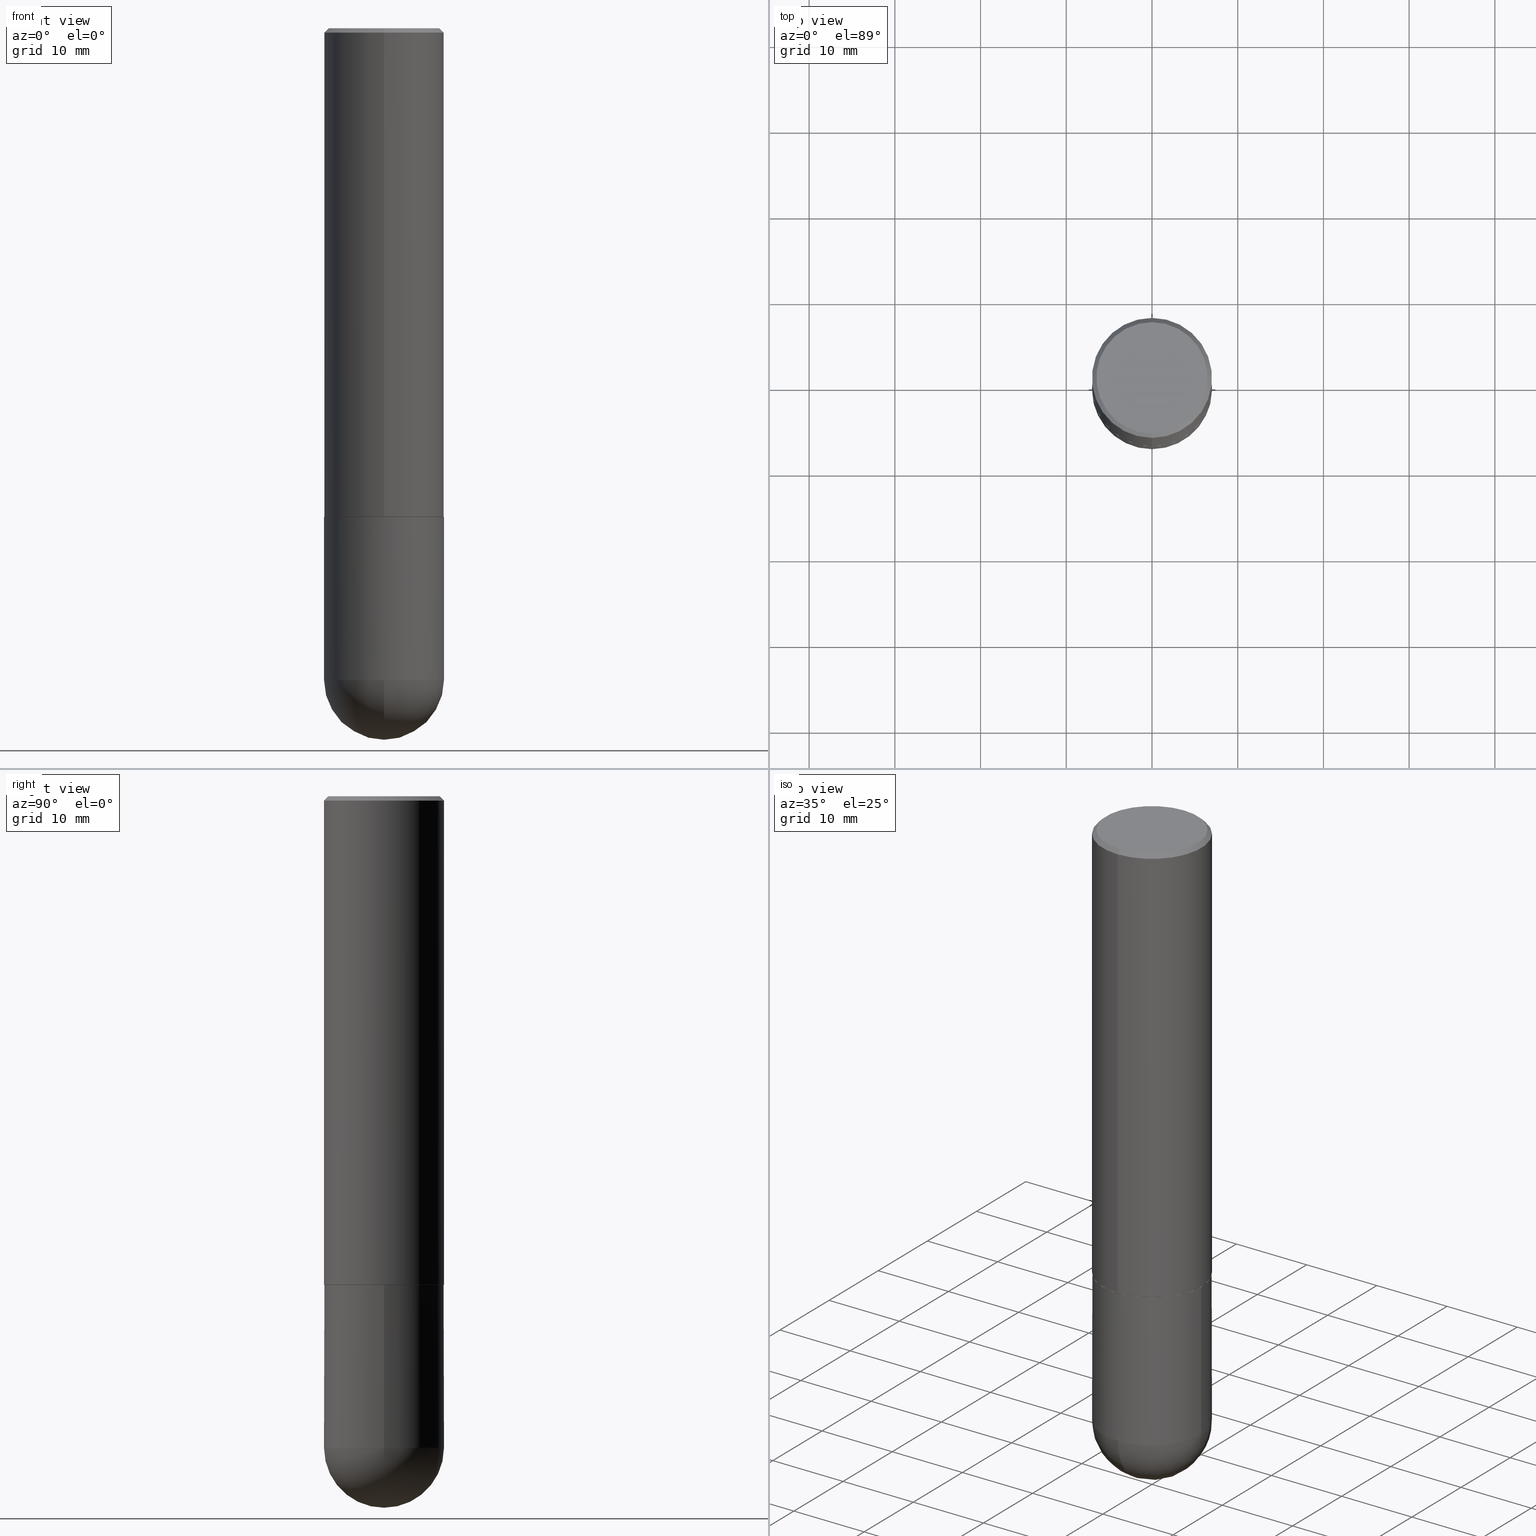
[diagram: canonical four-view strip — front | top / right | iso, engineering-drawing reading convention]
A machine part, canonical four-view strip (front | top / right | iso — engineering-drawing reading convention). The complete STEP part file that produces these views, byte-faithful:
ISO-10303-21;
HEADER;
FILE_DESCRIPTION (( 'STEP AP203' ),
    '1' );
FILE_NAME ('46518.STEP',
    '2024-04-10T11:50:26',
    ( '' ),
    ( '' ),
    'SwSTEP 2.0',
    'SolidWorks 2023',
    '' );
FILE_SCHEMA (( 'CONFIG_CONTROL_DESIGN' ));
ENDSEC;

DATA;
#1 = DIRECTION ( 'NONE',  ( -2.447914526065286047E-29, 3.487978928773040976E-15, 1.000000000000000000 ) ) ;
#2 = CARTESIAN_POINT ( 'NONE',  ( 0.000000000000000000, 0.000000000000000000, 0.000000000000000000 ) ) ;
#3 = EDGE_CURVE ( 'NONE', #207, #375, #410, .T. ) ;
#4 = DIRECTION ( 'NONE',  ( -2.447914526065286047E-29, 3.487978928773040976E-15, 1.000000000000000000 ) ) ;
#5 = AXIS2_PLACEMENT_3D ( 'NONE', #326, #37, #69 ) ;
#6 = CC_DESIGN_PERSON_AND_ORGANIZATION_ASSIGNMENT ( #278, #123, ( #120 ) ) ;
#7 = CIRCLE ( 'NONE', #243, 0.2756000000000000671 ) ;
#8 = DIRECTION ( 'NONE',  ( 4.937700262164538576E-15, 0.7071067811865437980, -0.7071067811865512365 ) ) ;
#9 = ORIENTED_EDGE ( 'NONE', *, *, #201, .T. ) ;
#10 = VERTEX_POINT ( 'NONE', #24 ) ;
#11 = DIRECTION ( 'NONE',  ( 1.000000000000000000, -6.982962677686264344E-15, 0.000000000000000000 ) ) ;
#12 = LOCAL_TIME ( 7, 50, 26.00000000000000000, #211 ) ;
#13 = APPLICATION_PROTOCOL_DEFINITION ( 'international standard', 'config_control_design', 1994, #188 ) ;
#14 = DIRECTION ( 'NONE',  ( -2.447914526065285207E-29, 3.487978928773041370E-15, 1.000000000000000000 ) ) ;
#15 = VERTEX_POINT ( 'NONE', #307 ) ;
#16 = EDGE_CURVE ( 'NONE', #138, #375, #104, .T. ) ;
#17 = DIRECTION ( 'NONE',  ( -2.445468806185136877E-29, 3.491481338843145188E-15, 1.000000000000000000 ) ) ;
#18 = CARTESIAN_POINT ( 'NONE',  ( 1.954703066076091700E-15, 0.2745999999999921837, -2.244100000000000872 ) ) ;
#19 = CIRCLE ( 'NONE', #166, 0.2756000000000000116 ) ;
#20 = PERSON_AND_ORGANIZATION ( #390, #140 ) ;
#21 = ORIENTED_EDGE ( 'NONE', *, *, #16, .T. ) ;
#22 = DIRECTION ( 'NONE',  ( -2.445468806185136877E-29, 3.491481338843145188E-15, 1.000000000000000000 ) ) ;
#23 = ORIENTED_EDGE ( 'NONE', *, *, #87, .T. ) ;
#24 = CARTESIAN_POINT ( 'NONE',  ( -1.924504513970282495E-15, -0.2756000000000081718, -2.243099999999999206 ) ) ;
#25 = APPROVAL ( #117, 'UNSPECIFIED' ) ;
#26 = ORIENTED_EDGE ( 'NONE', *, *, #324, .F. ) ;
#27 = AXIS2_PLACEMENT_3D ( 'NONE', #253, #380, #274 ) ;
#28 = VECTOR ( 'NONE', #181, 39.37007874015748143 ) ;
#29 = DIRECTION ( 'NONE',  ( -2.447914526065286047E-29, 3.487978928773040976E-15, 1.000000000000000000 ) ) ;
#30 = COORDINATED_UNIVERSAL_TIME_OFFSET ( 5, 0, .BEHIND. ) ;
#31 = DIRECTION ( 'NONE',  ( 1.000000000000000000, -6.982962677686267499E-15, 4.876176775795935793E-29 ) ) ;
#32 = AXIS2_PLACEMENT_3D ( 'NONE', #121, #183, #283 ) ;
#33 = CIRCLE ( 'NONE', #176, 0.2756000000000000671 ) ;
#34 = CARTESIAN_POINT ( 'NONE',  ( 0.000000000000000000, 0.000000000000000000, 0.000000000000000000 ) ) ;
#35 = DIRECTION ( 'NONE',  ( -6.982962677686265922E-15, -1.000000000000000000, 3.487978928773041370E-15 ) ) ;
#36 = EDGE_CURVE ( 'NONE', #15, #300, #316, .T. ) ;
#37 = DIRECTION ( 'NONE',  ( -2.447914526065286047E-29, 3.487978928773040976E-15, 1.000000000000000000 ) ) ;
#38 = UNCERTAINTY_MEASURE_WITH_UNIT (LENGTH_MEASURE( 1.000000000000000082E-05 ), #378, 'distance_accuracy_value', 'NONE');
#39 = LOCAL_TIME ( 7, 50, 26.00000000000000000, #286 ) ;
#40 = DIRECTION ( 'NONE',  ( -6.982962677686265922E-15, -1.000000000000000000, 3.487978928773041370E-15 ) ) ;
#41 = EDGE_LOOP ( 'NONE', ( #111, #91, #89, #125 ) ) ;
#42 = DESIGN_CONTEXT ( 'detailed design', #188, 'design' ) ;
#43 = APPROVAL_ROLE ( '' ) ;
#44 = ORIENTED_EDGE ( 'NONE', *, *, #53, .F. ) ;
#45 = APPROVAL_DATE_TIME ( #299, #25 ) ;
#46 = ORIENTED_EDGE ( 'NONE', *, *, #327, .T. ) ;
#47 = CARTESIAN_POINT ( 'NONE',  ( -0.2756000000000000671, 1.958255779754836589E-15, -1.355658510874252287E-29 ) ) ;
#48 = PRODUCT_DEFINITION_SHAPE ( 'NONE', 'NONE',  #103 ) ;
#49 = VECTOR ( 'NONE', #17, 39.37007874015748143 ) ;
#50 = VECTOR ( 'NONE', #163, 39.37007874015748143 ) ;
#51 = LOCAL_TIME ( 7, 50, 26.00000000000000000, #304 ) ;
#52 = EDGE_LOOP ( 'NONE', ( #393, #21 ) ) ;
#53 = EDGE_CURVE ( 'NONE', #300, #207, #202, .T. ) ;
#54 = DIRECTION ( 'NONE',  ( 6.982962677686265922E-15, 1.000000000000000000, 0.000000000000000000 ) ) ;
#55 = VERTEX_POINT ( 'NONE', #400 ) ;
#56 = CARTESIAN_POINT ( 'NONE',  ( 5.490917073417043323E-29, -7.823885535130809142E-15, -2.243100000000000094 ) ) ;
#57 = PERSON_AND_ORGANIZATION ( #390, #140 ) ;
#58 = ORIENTED_EDGE ( 'NONE', *, *, #160, .F. ) ;
#59 = DIRECTION ( 'NONE',  ( 1.000000000000000000, -6.982962677686265922E-15, 4.883557194083112340E-29 ) ) ;
#60 = CLOSED_SHELL ( 'NONE', ( #315, #295, #332, #355, #216 ) ) ;
#61 = CARTESIAN_POINT ( 'NONE',  ( -1.890753248185833713E-15, -0.2756000000000001227, -0.01999999999999913305 ) ) ;
#62 = DIRECTION ( 'NONE',  ( -2.447914526065286047E-29, 3.487978928773040976E-15, 1.000000000000000000 ) ) ;
#63 = ORIENTED_EDGE ( 'NONE', *, *, #335, .F. ) ;
#64 = ORIENTED_EDGE ( 'NONE', *, *, #87, .F. ) ;
#65 =( NAMED_UNIT ( * ) PLANE_ANGLE_UNIT ( ) SI_UNIT ( $, .RADIAN. ) );
#66 = LINE ( 'NONE', #213, #155 ) ;
#67 = CONICAL_SURFACE ( 'NONE', #71, 0.2756000000000000671, 0.7853981633974465026 ) ;
#68 = CIRCLE ( 'NONE', #259, 0.2756000000000003447 ) ;
#69 = DIRECTION ( 'NONE',  ( -6.982962677686266711E-15, -1.000000000000000000, 3.979385278462145862E-15 ) ) ;
#70 = EDGE_CURVE ( 'NONE', #314, #300, #185, .T. ) ;
#71 = AXIS2_PLACEMENT_3D ( 'NONE', #134, #296, #135 ) ;
#72 = SECURITY_CLASSIFICATION ( '', '', #235 ) ;
#73 = APPROVAL ( #338, 'UNSPECIFIED' ) ;
#74 = CYLINDRICAL_SURFACE ( 'NONE', #376, 0.2756000000000001782 ) ;
#75 = FACE_OUTER_BOUND ( 'NONE', #107, .T. ) ;
#76 = CLOSED_SHELL ( 'NONE', ( #98, #173, #224, #240, #133, #320, #364, #405 ) ) ;
#77 = VECTOR ( 'NONE', #22, 39.37007874015748143 ) ;
#78 = EDGE_LOOP ( 'NONE', ( #64, #177, #151, #9 ) ) ;
#79 = PRODUCT ( '46518', '46518', '', ( #271 ) ) ;
#80 = ORIENTED_EDGE ( 'NONE', *, *, #182, .F. ) ;
#81 = LINE ( 'NONE', #215, #28 ) ;
#82 = ORIENTED_EDGE ( 'NONE', *, *, #3, .F. ) ;
#83 = DIRECTION ( 'NONE',  ( -6.982962677686266711E-15, -1.000000000000000000, 3.979385278462145862E-15 ) ) ;
#84 = AXIS2_PLACEMENT_3D ( 'NONE', #279, #214, #128 ) ;
#85 = AXIS2_PLACEMENT_3D ( 'NONE', #178, #210, #119 ) ;
#86 = DIRECTION ( 'NONE',  ( -2.445468806185136597E-29, 3.491481338843145583E-15, 1.000000000000000000 ) ) ;
#87 = EDGE_CURVE ( 'NONE', #97, #55, #344, .T. ) ;
#88 = PERSON_AND_ORGANIZATION ( #390, #140 ) ;
#89 = ORIENTED_EDGE ( 'NONE', *, *, #371, .T. ) ;
#90 = DIRECTION ( 'NONE',  ( -2.447914526065286047E-29, 3.487978928773040976E-15, 1.000000000000000000 ) ) ;
#91 = ORIENTED_EDGE ( 'NONE', *, *, #250, .T. ) ;
#92 = SPHERICAL_SURFACE ( 'NONE', #294, 0.2756000000000003447 ) ;
#93 = EDGE_CURVE ( 'NONE', #207, #203, #136, .T. ) ;
#94 = DIRECTION ( 'NONE',  ( -2.445468806185136597E-29, 3.491481338843145583E-15, 1.000000000000000000 ) ) ;
#95 = AXIS2_PLACEMENT_3D ( 'NONE', #366, #86, #209 ) ;
#96 = EDGE_LOOP ( 'NONE', ( #245, #124, #362, #44 ) ) ;
#97 = VERTEX_POINT ( 'NONE', #318 ) ;
#98 = ADVANCED_FACE ( 'NONE', ( #195 ), #322, .T. ) ;
#99 = ORIENTED_EDGE ( 'NONE', *, *, #409, .T. ) ;
#100 = AXIS2_PLACEMENT_3D ( 'NONE', #321, #4, #101 ) ;
#101 = DIRECTION ( 'NONE',  ( -6.982962677686265922E-15, -1.000000000000000000, 3.484816075009405599E-15 ) ) ;
#102 = DIRECTION ( 'NONE',  ( 0.000000000000000000, 0.000000000000000000, 1.000000000000000000 ) ) ;
#103 = PRODUCT_DEFINITION ( 'UNKNOWN', '', #120, #42 ) ;
#104 = CIRCLE ( 'NONE', #391, 0.2756000000000000116 ) ;
#105 = CC_DESIGN_APPROVAL ( #348, ( #72 ) ) ;
#106 = APPROVAL_PERSON_ORGANIZATION ( #20, #25, #43 ) ;
#107 = EDGE_LOOP ( 'NONE', ( #347, #109, #147, #305 ) ) ;
#108 = DIRECTION ( 'NONE',  ( -6.982962677686265922E-15, -1.000000000000000000, 3.964946289788475374E-15 ) ) ;
#109 = ORIENTED_EDGE ( 'NONE', *, *, #144, .T. ) ;
#110 = AXIS2_PLACEMENT_3D ( 'NONE', #252, #221, #311 ) ;
#111 = ORIENTED_EDGE ( 'NONE', *, *, #144, .F. ) ;
#112 = CARTESIAN_POINT ( 'NONE',  ( 3.261089778898830066E-45, -4.646654248961670256E-31, -1.332191032070315374E-16 ) ) ;
#113 = DATE_AND_TIME ( #170, #412 ) ;
#114 = CARTESIAN_POINT ( 'NONE',  ( 5.493364987943107990E-29, -7.827373514059580162E-15, -2.244099999999999984 ) ) ;
#115 = CC_DESIGN_PERSON_AND_ORGANIZATION_ASSIGNMENT ( #57, #150, ( #120 ) ) ;
#116 = CARTESIAN_POINT ( 'NONE',  ( -1.958255779754765592E-15, -0.2756000000000108918, -2.992099999999998872 ) ) ;
#117 = APPROVAL_STATUS ( 'not_yet_approved' ) ;
#118 = ORIENTED_EDGE ( 'NONE', *, *, #93, .T. ) ;
#119 = DIRECTION ( 'NONE',  ( 6.982962677686265922E-15, 1.000000000000000000, -3.487978928773041370E-15 ) ) ;
#120 = PRODUCT_DEFINITION_FORMATION_WITH_SPECIFIED_SOURCE ( 'ANY', '', #79, .NOT_KNOWN. ) ;
#121 = CARTESIAN_POINT ( 'NONE',  ( 7.317087214986547114E-29, -1.044686131395257581E-14, -2.992100000000000204 ) ) ;
#122 = DIRECTION ( 'NONE',  ( -6.982962677686266711E-15, -1.000000000000000000, 3.979385278462145862E-15 ) ) ;
#123 = PERSON_AND_ORGANIZATION_ROLE ( 'design_supplier' ) ;
#124 = ORIENTED_EDGE ( 'NONE', *, *, #399, .T. ) ;
#125 = ORIENTED_EDGE ( 'NONE', *, *, #201, .F. ) ;
#126 = MANIFOLD_SOLID_BREP ( 'Body-Move/Copy2[2]', #76 ) ;
#127 = APPROVAL_PERSON_ORGANIZATION ( #349, #348, #282 ) ;
#128 = DIRECTION ( 'NONE',  ( -7.105427357601001859E-15, -1.000000000000000000, 0.000000000000000000 ) ) ;
#129 = ORIENTED_EDGE ( 'NONE', *, *, #130, .F. ) ;
#130 = EDGE_CURVE ( 'NONE', #174, #368, #66, .T. ) ;
#131 = APPROVAL_DATE_TIME ( #217, #348 ) ;
#132 = AXIS2_PLACEMENT_3D ( 'NONE', #256, #102, #384 ) ;
#133 = ADVANCED_FACE ( 'NONE', ( #356 ), #74, .T. ) ;
#134 = CARTESIAN_POINT ( 'NONE',  ( 4.895829052130595321E-31, -6.975957857546113555E-17, -0.02000000000000009409 ) ) ;
#135 = DIRECTION ( 'NONE',  ( 6.982962677686265922E-15, 1.000000000000000000, -3.484816075009405599E-15 ) ) ;
#136 = CIRCLE ( 'NONE', #110, 0.2756000000000000671 ) ;
#137 = CIRCLE ( 'NONE', #317, 0.2756000000000003447 ) ;
#138 = VERTEX_POINT ( 'NONE', #229 ) ;
#139 = DIRECTION ( 'NONE',  ( -6.982962677686265922E-15, -1.000000000000000000, 3.487978928773040976E-15 ) ) ;
#140 = ORGANIZATION ( 'UNSPECIFIED', 'UNSPECIFIED', '' ) ;
#141 = CARTESIAN_POINT ( 'NONE',  ( 7.671722831522178326E-29, -1.186642030618554829E-14, -3.267700000000000049 ) ) ;
#142 = PERSON_AND_ORGANIZATION_ROLE ( 'creator' ) ;
#143 = LINE ( 'NONE', #148, #408 ) ;
#144 = EDGE_CURVE ( 'NONE', #180, #368, #358, .T. ) ;
#145 = ORIENTED_EDGE ( 'NONE', *, *, #399, .F. ) ;
#146 = DIRECTION ( 'NONE',  ( 2.438088387897960049E-29, -3.491481338843145188E-15, -1.000000000000000000 ) ) ;
#147 = ORIENTED_EDGE ( 'NONE', *, *, #409, .F. ) ;
#148 = CARTESIAN_POINT ( 'NONE',  ( -1.924504513970336137E-15, -0.2756000000000001782, 9.612869927698508130E-16 ) ) ;
#149 = VECTOR ( 'NONE', #382, 39.37007874015748143 ) ;
#150 = PERSON_AND_ORGANIZATION_ROLE ( 'creator' ) ;
#151 = ORIENTED_EDGE ( 'NONE', *, *, #130, .T. ) ;
#152 = ORIENTED_EDGE ( 'NONE', *, *, #232, .F. ) ;
#153 = CALENDAR_DATE ( 2024, 10, 4 ) ;
#154 = EDGE_LOOP ( 'NONE', ( #152, #262, #402, #218 ) ) ;
#155 = VECTOR ( 'NONE', #8, 39.37007874015748143 ) ;
#156 = ORIENTED_EDGE ( 'NONE', *, *, #70, .T. ) ;
#157 = CC_DESIGN_PERSON_AND_ORGANIZATION_ASSIGNMENT ( #340, #142, ( #103 ) ) ;
#158 = CARTESIAN_POINT ( 'NONE',  ( 5.493364987943107990E-29, -7.827373514059580162E-15, -2.244099999999999984 ) ) ;
#159 =( NAMED_UNIT ( * ) SI_UNIT ( $, .STERADIAN. ) SOLID_ANGLE_UNIT ( ) );
#160 = EDGE_CURVE ( 'NONE', #97, #174, #385, .T. ) ;
#161 = FACE_OUTER_BOUND ( 'NONE', #204, .T. ) ;
#162 = CC_DESIGN_SECURITY_CLASSIFICATION ( #72, ( #120 ) ) ;
#163 = DIRECTION ( 'NONE',  ( -2.447914526065285767E-29, 3.487978928773041370E-15, 1.000000000000000000 ) ) ;
#164 = DIRECTION ( 'NONE',  ( -6.982962677686265922E-15, -1.000000000000000000, 3.487978928773040976E-15 ) ) ;
#165 = FACE_OUTER_BOUND ( 'NONE', #249, .T. ) ;
#166 = AXIS2_PLACEMENT_3D ( 'NONE', #260, #387, #325 ) ;
#167 = AXIS2_PLACEMENT_3D ( 'NONE', #114, #62, #122 ) ;
#168 = DIRECTION ( 'NONE',  ( -2.445468806185136597E-29, 3.491481338843145583E-15, 1.000000000000000000 ) ) ;
#169 = ORIENTED_EDGE ( 'NONE', *, *, #290, .F. ) ;
#170 = CALENDAR_DATE ( 2024, 10, 4 ) ;
#171 = ORIENTED_EDGE ( 'NONE', *, *, #3, .T. ) ;
#172 = CARTESIAN_POINT ( 'NONE',  ( 6.985967437072660867E-29, -1.092104368209262610E-14, -2.992100000000000204 ) ) ;
#173 = ADVANCED_FACE ( 'NONE', ( #75 ), #291, .T. ) ;
#174 = VERTEX_POINT ( 'NONE', #197 ) ;
#175 = LINE ( 'NONE', #47, #77 ) ;
#176 = AXIS2_PLACEMENT_3D ( 'NONE', #189, #270, #11 ) ;
#177 = ORIENTED_EDGE ( 'NONE', *, *, #352, .F. ) ;
#178 = CARTESIAN_POINT ( 'NONE',  ( 1.784845260416610724E-15, 0.2556000000000001604, -9.581369657979055694E-16 ) ) ;
#179 = PERSON_AND_ORGANIZATION_ROLE ( 'design_owner' ) ;
#180 = VERTEX_POINT ( 'NONE', #293 ) ;
#181 = DIRECTION ( 'NONE',  ( -4.937700262165812586E-15, -0.7071067811867262076, 0.7071067811863689379 ) ) ;
#182 = EDGE_CURVE ( 'NONE', #375, #138, #19, .T. ) ;
#183 = DIRECTION ( 'NONE',  ( -2.445468806185136597E-29, 3.491481338843145583E-15, 1.000000000000000000 ) ) ;
#184 =( LENGTH_UNIT ( ) NAMED_UNIT ( * ) SI_UNIT ( $, .METRE. ) );
#185 = CIRCLE ( 'NONE', #84, 0.2756000000000003447 ) ;
#186 = AXIS2_PLACEMENT_3D ( 'NONE', #277, #309, #83 ) ;
#187 = DIRECTION ( 'NONE',  ( -4.851104656540954809E-15, -0.7071067811865486830, -0.7071067811865463515 ) ) ;
#188 = APPLICATION_CONTEXT ( 'configuration controlled 3d designs of mechanical parts and assemblies' ) ;
#189 = CARTESIAN_POINT ( 'NONE',  ( 7.317087214986547114E-29, -1.044686131395257581E-14, -2.992100000000000204 ) ) ;
#190 = ORIENTED_EDGE ( 'NONE', *, *, #36, .T. ) ;
#191 = ORIENTED_EDGE ( 'NONE', *, *, #386, .F. ) ;
#192 = EDGE_CURVE ( 'NONE', #341, #360, #263, .T. ) ;
#193 = AXIS2_PLACEMENT_3D ( 'NONE', #328, #1, #40 ) ;
#194 = AXIS2_PLACEMENT_3D ( 'NONE', #112, #90, #139 ) ;
#195 = FACE_OUTER_BOUND ( 'NONE', #374, .T. ) ;
#196 = LENGTH_MEASURE_WITH_UNIT ( LENGTH_MEASURE( 0.02539999999999999897 ), #184 );
#197 = CARTESIAN_POINT ( 'NONE',  ( 1.854674887193473233E-15, 0.2556000000000001604, -1.024746517401421350E-15 ) ) ;
#198 = CIRCLE ( 'NONE', #353, 0.2756000000000003447 ) ;
#199 = DIRECTION ( 'NONE',  ( -2.447914526065286047E-29, 3.487978928773040976E-15, 1.000000000000000000 ) ) ;
#200 = CARTESIAN_POINT ( 'NONE',  ( 1.958255779754837378E-15, 0.2756000000000001782, -9.612869927698508130E-16 ) ) ;
#201 = EDGE_CURVE ( 'NONE', #368, #55, #411, .T. ) ;
#202 = CIRCLE ( 'NONE', #32, 0.2756000000000000671 ) ;
#203 = VERTEX_POINT ( 'NONE', #258 ) ;
#204 = EDGE_LOOP ( 'NONE', ( #58, #23, #99, #129 ) ) ;
#205 = DIRECTION ( 'NONE',  ( -6.982962677686265922E-15, -1.000000000000000000, 3.964946289788475374E-15 ) ) ;
#206 = CALENDAR_DATE ( 2024, 10, 4 ) ;
#207 = VERTEX_POINT ( 'NONE', #257 ) ;
#208 = DIRECTION ( 'NONE',  ( -6.982962677686265922E-15, -1.000000000000000000, 3.487978928773041370E-15 ) ) ;
#209 = DIRECTION ( 'NONE',  ( 1.000000000000000000, -6.982962677686267499E-15, 4.876176775795935793E-29 ) ) ;
#210 = DIRECTION ( 'NONE',  ( 2.447914526065285207E-29, -3.487978928773041370E-15, -1.000000000000000000 ) ) ;
#211 = COORDINATED_UNIVERSAL_TIME_OFFSET ( 5, 0, .BEHIND. ) ;
#212 = CARTESIAN_POINT ( 'NONE',  ( 5.487876547960065873E-29, -7.835233272497903917E-15, -2.244100000000000428 ) ) ;
#213 = CARTESIAN_POINT ( 'NONE',  ( 1.924504513970335743E-15, 0.2756000000000000116, -0.02000000000000105513 ) ) ;
#214 = DIRECTION ( 'NONE',  ( -1.000000000000000000, 7.105427357601001070E-15, -4.926315508542082329E-29 ) ) ;
#215 = CARTESIAN_POINT ( 'NONE',  ( -1.917521551292593719E-15, -0.2746000000000078378, -2.244099999999999095 ) ) ;
#216 = ADVANCED_FACE ( 'NONE', ( #165 ), #225, .T. ) ;
#217 = DATE_AND_TIME ( #153, #284 ) ;
#218 = ORIENTED_EDGE ( 'NONE', *, *, #250, .F. ) ;
#219 = CC_DESIGN_DATE_AND_TIME_ASSIGNMENT ( #268, #333, ( #103 ) ) ;
#220 = DATE_TIME_ROLE ( 'classification_date' ) ;
#221 = DIRECTION ( 'NONE',  ( -2.445468806185136597E-29, 3.491481338843145583E-15, 1.000000000000000000 ) ) ;
#222 = ORIENTED_EDGE ( 'NONE', *, *, #335, .T. ) ;
#223 = APPROVAL_PERSON_ORGANIZATION ( #88, #73, #273 ) ;
#224 = ADVANCED_FACE ( 'NONE', ( #161 ), #67, .T. ) ;
#225 = CYLINDRICAL_SURFACE ( 'NONE', #308, 0.2756000000000000671 ) ;
#226 = ADVANCED_BREP_SHAPE_REPRESENTATION ( '46518', ( #388, #126, #132 ), #289 ) ;
#227 = CC_DESIGN_APPROVAL ( #25, ( #103 ) ) ;
#228 = CC_DESIGN_DATE_AND_TIME_ASSIGNMENT ( #319, #220, ( #72 ) ) ;
#229 = CARTESIAN_POINT ( 'NONE',  ( -0.2756000000000000116, -7.182791513470402485E-15, -2.244100000000000428 ) ) ;
#230 = DIRECTION ( 'NONE',  ( -2.447914526065286047E-29, 3.487978928773040976E-15, 1.000000000000000000 ) ) ;
#231 = EDGE_LOOP ( 'NONE', ( #145, #156, #404, #264 ) ) ;
#232 = EDGE_CURVE ( 'NONE', #341, #180, #255, .T. ) ;
#233 = FACE_OUTER_BOUND ( 'NONE', #231, .T. ) ;
#234 = FACE_OUTER_BOUND ( 'NONE', #78, .T. ) ;
#235 = SECURITY_CLASSIFICATION_LEVEL ( 'unclassified' ) ;
#236 = DIRECTION ( 'NONE',  ( -2.447914526065286047E-29, 3.487978928773040976E-15, 1.000000000000000000 ) ) ;
#237 = PERSON_AND_ORGANIZATION ( #390, #140 ) ;
#238 = PLANE ( 'NONE',  #85 ) ;
#239 = DIRECTION ( 'NONE',  ( -1.000000000000000000, 6.982962677686265922E-15, -4.883557194083112340E-29 ) ) ;
#240 = ADVANCED_FACE ( 'NONE', ( #234 ), #292, .T. ) ;
#241 = APPLICATION_PROTOCOL_DEFINITION ( 'international standard', 'config_control_design', 1994, #343 ) ;
#242 = ORIENTED_EDGE ( 'NONE', *, *, #16, .F. ) ;
#243 = AXIS2_PLACEMENT_3D ( 'NONE', #403, #236, #363 ) ;
#244 = COORDINATED_UNIVERSAL_TIME_OFFSET ( 5, 0, .BEHIND. ) ;
#245 = ORIENTED_EDGE ( 'NONE', *, *, #70, .F. ) ;
#246 = CARTESIAN_POINT ( 'NONE',  ( 6.985967437072660867E-29, -1.092104368209262610E-14, -2.992100000000000204 ) ) ;
#247 = CALENDAR_DATE ( 2024, 10, 4 ) ;
#248 = ORIENTED_EDGE ( 'NONE', *, *, #53, .T. ) ;
#249 = EDGE_LOOP ( 'NONE', ( #63, #190, #248, #171, #242 ) ) ;
#250 = EDGE_CURVE ( 'NONE', #180, #10, #198, .T. ) ;
#251 = CC_DESIGN_APPROVAL ( #73, ( #120 ) ) ;
#252 = CARTESIAN_POINT ( 'NONE',  ( 7.317087214986547114E-29, -1.044686131395257581E-14, -2.992100000000000204 ) ) ;
#253 = CARTESIAN_POINT ( 'NONE',  ( 7.317087214986547114E-29, -1.044686131395257581E-14, -2.992100000000000204 ) ) ;
#254 = AXIS2_PLACEMENT_3D ( 'NONE', #381, #230, #164 ) ;
#255 = LINE ( 'NONE', #383, #149 ) ;
#256 = CARTESIAN_POINT ( 'NONE',  ( 0.000000000000000000, 0.000000000000000000, 0.000000000000000000 ) ) ;
#257 = CARTESIAN_POINT ( 'NONE',  ( 0.2756000000000000671, -1.106555180719557718E-14, -2.992100000000000204 ) ) ;
#258 = CARTESIAN_POINT ( 'NONE',  ( 1.924504513970407924E-15, 0.2755999999999895200, -2.992100000000001092 ) ) ;
#259 = AXIS2_PLACEMENT_3D ( 'NONE', #306, #59, #54 ) ;
#260 = CARTESIAN_POINT ( 'NONE',  ( 5.487876547960065873E-29, -7.835233272497903917E-15, -2.244100000000000428 ) ) ;
#261 = DIRECTION ( 'NONE',  ( -2.447914526065286047E-29, 3.487978928773040976E-15, 1.000000000000000000 ) ) ;
#262 = ORIENTED_EDGE ( 'NONE', *, *, #192, .T. ) ;
#263 = CIRCLE ( 'NONE', #5, 0.2746000000000000107 ) ;
#264 = ORIENTED_EDGE ( 'NONE', *, *, #327, .F. ) ;
#265 = CIRCLE ( 'NONE', #167, 0.2746000000000000107 ) ;
#266 = FACE_OUTER_BOUND ( 'NONE', #96, .T. ) ;
#267 = FACE_OUTER_BOUND ( 'NONE', #370, .T. ) ;
#268 = DATE_AND_TIME ( #247, #51 ) ;
#269 = EDGE_LOOP ( 'NONE', ( #191, #297 ) ) ;
#270 = DIRECTION ( 'NONE',  ( -2.445468806185136597E-29, 3.491481338843145583E-15, 1.000000000000000000 ) ) ;
#271 = MECHANICAL_CONTEXT ( 'NONE', #343, 'mechanical' ) ;
#272 = CARTESIAN_POINT ( 'NONE',  ( 1.924504513970335743E-15, 0.2756000000000000116, -0.02000000000000105513 ) ) ;
#273 = APPROVAL_ROLE ( '' ) ;
#274 = DIRECTION ( 'NONE',  ( 1.000000000000000000, -6.982962677686264344E-15, 0.000000000000000000 ) ) ;
#275 = AXIS2_PLACEMENT_3D ( 'NONE', #158, #29, #351 ) ;
#276 = PLANE ( 'NONE',  #323 ) ;
#277 = CARTESIAN_POINT ( 'NONE',  ( 5.493364987943107990E-29, -7.827373514059580162E-15, -2.244099999999999984 ) ) ;
#278 = PERSON_AND_ORGANIZATION ( #390, #140 ) ;
#279 = CARTESIAN_POINT ( 'NONE',  ( 6.985967437072660867E-29, -1.092104368209262610E-14, -2.992100000000000204 ) ) ;
#280 = CARTESIAN_POINT ( 'NONE',  ( 1.924504513970389780E-15, 0.2755999999999921846, -2.244100000000001316 ) ) ;
#281 = ORIENTED_EDGE ( 'NONE', *, *, #386, .T. ) ;
#282 = APPROVAL_ROLE ( '' ) ;
#283 = DIRECTION ( 'NONE',  ( 1.000000000000000000, -6.982962677686264344E-15, 0.000000000000000000 ) ) ;
#284 = LOCAL_TIME ( 7, 50, 26.00000000000000000, #30 ) ;
#285 = AXIS2_PLACEMENT_3D ( 'NONE', #280, #146, #396 ) ;
#286 = COORDINATED_UNIVERSAL_TIME_OFFSET ( 5, 0, .BEHIND. ) ;
#287 = DIRECTION ( 'NONE',  ( 1.000000000000000000, -6.982962677686269866E-15, 0.000000000000000000 ) ) ;
#288 = VECTOR ( 'NONE', #187, 39.37007874015748143 ) ;
#289 =( GEOMETRIC_REPRESENTATION_CONTEXT ( 3 ) GLOBAL_UNCERTAINTY_ASSIGNED_CONTEXT ( ( #38 ) ) GLOBAL_UNIT_ASSIGNED_CONTEXT ( ( #378, #65, #159 ) ) REPRESENTATION_CONTEXT ( 'NONE', 'WORKASPACE' ) );
#290 = EDGE_CURVE ( 'NONE', #10, #180, #137, .T. ) ;
#291 = CYLINDRICAL_SURFACE ( 'NONE', #193, 0.2756000000000001782 ) ;
#292 = CONICAL_SURFACE ( 'NONE', #407, 0.2756000000000000671, 0.7853981633974465026 ) ;
#293 = CARTESIAN_POINT ( 'NONE',  ( 1.958255779754865383E-15, 0.2755999999999925176, -2.243100000000001426 ) ) ;
#294 = AXIS2_PLACEMENT_3D ( 'NONE', #246, #334, #345 ) ;
#295 = ADVANCED_FACE ( 'NONE', ( #233 ), #359, .T. ) ;
#296 = DIRECTION ( 'NONE',  ( 2.447914526065286047E-29, -3.487978928773040976E-15, -1.000000000000000000 ) ) ;
#297 = ORIENTED_EDGE ( 'NONE', *, *, #192, .F. ) ;
#298 = DIRECTION ( 'NONE',  ( 6.982962677686265922E-15, 1.000000000000000000, -3.964946289788475374E-15 ) ) ;
#299 = DATE_AND_TIME ( #206, #12 ) ;
#300 = VERTEX_POINT ( 'NONE', #116 ) ;
#301 = CIRCLE ( 'NONE', #194, 0.2556000000000001604 ) ;
#302 = FACE_OUTER_BOUND ( 'NONE', #52, .T. ) ;
#303 = CC_DESIGN_PERSON_AND_ORGANIZATION_ASSIGNMENT ( #392, #361, ( #72 ) ) ;
#304 = COORDINATED_UNIVERSAL_TIME_OFFSET ( 5, 0, .BEHIND. ) ;
#305 = ORIENTED_EDGE ( 'NONE', *, *, #371, .F. ) ;
#306 = CARTESIAN_POINT ( 'NONE',  ( 6.985967437072660867E-29, -1.092104368209262610E-14, -2.992100000000000204 ) ) ;
#307 = CARTESIAN_POINT ( 'NONE',  ( -0.2756000000000000671, -7.182791513470404062E-15, -2.992100000000000204 ) ) ;
#308 = AXIS2_PLACEMENT_3D ( 'NONE', #34, #168, #31 ) ;
#309 = DIRECTION ( 'NONE',  ( -2.447914526065286047E-29, 3.487978928773040976E-15, 1.000000000000000000 ) ) ;
#310 = DIMENSIONAL_EXPONENTS ( 1.000000000000000000, 0.000000000000000000, 0.000000000000000000, 0.000000000000000000, 0.000000000000000000, 0.000000000000000000, 0.000000000000000000 ) ;
#311 = DIRECTION ( 'NONE',  ( 1.000000000000000000, -6.982962677686264344E-15, 0.000000000000000000 ) ) ;
#312 = CARTESIAN_POINT ( 'NONE',  ( 0.2756000000000000671, -1.924504513970335743E-15, 1.343874319409360268E-29 ) ) ;
#313 = APPROVAL_STATUS ( 'not_yet_approved' ) ;
#314 = VERTEX_POINT ( 'NONE', #141 ) ;
#315 = ADVANCED_FACE ( 'NONE', ( #267 ), #395, .T. ) ;
#316 = CIRCLE ( 'NONE', #27, 0.2756000000000000671 ) ;
#317 = AXIS2_PLACEMENT_3D ( 'NONE', #331, #389, #108 ) ;
#318 = CARTESIAN_POINT ( 'NONE',  ( -1.822148268208119170E-15, -0.2556000000000001604, 7.583083109873583249E-16 ) ) ;
#319 = DATE_AND_TIME ( #346, #39 ) ;
#320 = ADVANCED_FACE ( 'NONE', ( #337 ), #354, .T. ) ;
#321 = CARTESIAN_POINT ( 'NONE',  ( 4.895829052130595321E-31, -6.975957857546113555E-17, -0.02000000000000009409 ) ) ;
#322 = CONICAL_SURFACE ( 'NONE', #275, 0.2746000000000000107, 0.7853981633977044075 ) ;
#323 = AXIS2_PLACEMENT_3D ( 'NONE', #369, #14, #208 ) ;
#324 = EDGE_CURVE ( 'NONE', #360, #10, #81, .T. ) ;
#325 = DIRECTION ( 'NONE',  ( 1.000000000000000000, -6.982962677686269866E-15, 0.000000000000000000 ) ) ;
#326 = CARTESIAN_POINT ( 'NONE',  ( 5.493364987943107990E-29, -7.827373514059580162E-15, -2.244099999999999984 ) ) ;
#327 = EDGE_CURVE ( 'NONE', #203, #15, #33, .T. ) ;
#328 = CARTESIAN_POINT ( 'NONE',  ( 0.000000000000000000, 0.000000000000000000, 0.000000000000000000 ) ) ;
#329 = DIRECTION ( 'NONE',  ( 2.447914526065286047E-29, -3.487978928773040976E-15, -1.000000000000000000 ) ) ;
#330 = EDGE_LOOP ( 'NONE', ( #406, #350 ) ) ;
#331 = CARTESIAN_POINT ( 'NONE',  ( 5.490917073417043323E-29, -7.823885535130809142E-15, -2.243100000000000094 ) ) ;
#332 = ADVANCED_FACE ( 'NONE', ( #266 ), #92, .T. ) ;
#333 = DATE_TIME_ROLE ( 'creation_date' ) ;
#334 = DIRECTION ( 'NONE',  ( -1.000000000000000000, 6.982962677686265922E-15, -4.883557194083112340E-29 ) ) ;
#335 = EDGE_CURVE ( 'NONE', #15, #138, #175, .T. ) ;
#336 = FACE_OUTER_BOUND ( 'NONE', #330, .T. ) ;
#337 = FACE_OUTER_BOUND ( 'NONE', #154, .T. ) ;
#338 = APPROVAL_STATUS ( 'not_yet_approved' ) ;
#339 = CARTESIAN_POINT ( 'NONE',  ( 4.895829052130595321E-31, -6.975957857546113555E-17, -0.02000000000000009409 ) ) ;
#340 = PERSON_AND_ORGANIZATION ( #390, #140 ) ;
#341 = VERTEX_POINT ( 'NONE', #18 ) ;
#342 = DIRECTION ( 'NONE',  ( -2.447914526065285767E-29, 3.487978928773041370E-15, 1.000000000000000000 ) ) ;
#343 = APPLICATION_CONTEXT ( 'configuration controlled 3d designs of mechanical parts and assemblies' ) ;
#344 = LINE ( 'NONE', #61, #288 ) ;
#345 = DIRECTION ( 'NONE',  ( 6.982962677686265922E-15, 1.000000000000000000, -3.964946289788475374E-15 ) ) ;
#346 = CALENDAR_DATE ( 2024, 10, 4 ) ;
#347 = ORIENTED_EDGE ( 'NONE', *, *, #290, .T. ) ;
#348 = APPROVAL ( #313, 'UNSPECIFIED' ) ;
#349 = PERSON_AND_ORGANIZATION ( #390, #140 ) ;
#350 = ORIENTED_EDGE ( 'NONE', *, *, #160, .T. ) ;
#351 = DIRECTION ( 'NONE',  ( -6.982962677686266711E-15, -1.000000000000000000, 3.979385278462145862E-15 ) ) ;
#352 = EDGE_CURVE ( 'NONE', #174, #97, #301, .T. ) ;
#353 = AXIS2_PLACEMENT_3D ( 'NONE', #56, #261, #205 ) ;
#354 = CONICAL_SURFACE ( 'NONE', #186, 0.2746000000000000107, 0.7853981633977044075 ) ;
#355 = ADVANCED_FACE ( 'NONE', ( #302 ), #394, .F. ) ;
#356 = FACE_OUTER_BOUND ( 'NONE', #41, .T. ) ;
#357 = PRODUCT_RELATED_PRODUCT_CATEGORY ( 'detail', '', ( #79 ) ) ;
#358 = LINE ( 'NONE', #200, #50 ) ;
#359 = SPHERICAL_SURFACE ( 'NONE', #367, 0.2756000000000003447 ) ;
#360 = VERTEX_POINT ( 'NONE', #401 ) ;
#361 = PERSON_AND_ORGANIZATION_ROLE ( 'classification_officer' ) ;
#362 = ORIENTED_EDGE ( 'NONE', *, *, #93, .F. ) ;
#363 = DIRECTION ( 'NONE',  ( -6.982962677686265922E-15, -1.000000000000000000, 3.484816075009405599E-15 ) ) ;
#364 = ADVANCED_FACE ( 'NONE', ( #372 ), #276, .F. ) ;
#365 = APPROVAL_DATE_TIME ( #113, #73 ) ;
#366 = CARTESIAN_POINT ( 'NONE',  ( 0.000000000000000000, 0.000000000000000000, 0.000000000000000000 ) ) ;
#367 = AXIS2_PLACEMENT_3D ( 'NONE', #172, #239, #298 ) ;
#368 = VERTEX_POINT ( 'NONE', #272 ) ;
#369 = CARTESIAN_POINT ( 'NONE',  ( 5.493364987943109111E-29, -7.827373514059581739E-15, -2.244100000000000428 ) ) ;
#370 = EDGE_LOOP ( 'NONE', ( #46, #222, #80, #82, #118 ) ) ;
#371 = EDGE_CURVE ( 'NONE', #10, #55, #143, .T. ) ;
#372 = FACE_OUTER_BOUND ( 'NONE', #269, .T. ) ;
#373 = SHAPE_DEFINITION_REPRESENTATION ( #48, #226 ) ;
#374 = EDGE_LOOP ( 'NONE', ( #281, #377, #169, #26 ) ) ;
#375 = VERTEX_POINT ( 'NONE', #398 ) ;
#376 = AXIS2_PLACEMENT_3D ( 'NONE', #2, #199, #35 ) ;
#377 = ORIENTED_EDGE ( 'NONE', *, *, #232, .T. ) ;
#378 =( CONVERSION_BASED_UNIT ( 'INCH', #196 ) LENGTH_UNIT ( ) NAMED_UNIT ( #310 ) );
#379 = CC_DESIGN_PERSON_AND_ORGANIZATION_ASSIGNMENT ( #237, #179, ( #79 ) ) ;
#380 = DIRECTION ( 'NONE',  ( -2.445468806185136597E-29, 3.491481338843145583E-15, 1.000000000000000000 ) ) ;
#381 = CARTESIAN_POINT ( 'NONE',  ( 3.261089778898830066E-45, -4.646654248961670256E-31, -1.332191032070315374E-16 ) ) ;
#382 = DIRECTION ( 'NONE',  ( 5.024295867789349022E-15, 0.7071067811867310926, 0.7071067811863640529 ) ) ;
#383 = CARTESIAN_POINT ( 'NONE',  ( 1.951150352397290013E-15, 0.2745999999999921837, -2.244100000000000872 ) ) ;
#384 = DIRECTION ( 'NONE',  ( 1.000000000000000000, 0.000000000000000000, 0.000000000000000000 ) ) ;
#385 = CIRCLE ( 'NONE', #254, 0.2556000000000001604 ) ;
#386 = EDGE_CURVE ( 'NONE', #360, #341, #265, .T. ) ;
#387 = DIRECTION ( 'NONE',  ( -2.445468806185136597E-29, 3.491481338843145583E-15, 1.000000000000000000 ) ) ;
#388 = MANIFOLD_SOLID_BREP ( 'Body-Move/Copy2[1]', #60 ) ;
#389 = DIRECTION ( 'NONE',  ( -2.447914526065286047E-29, 3.487978928773040976E-15, 1.000000000000000000 ) ) ;
#390 = PERSON ( 'UNSPECIFIED', 'UNSPECIFIED', 'UNSPECIFIED', ('UNSPECIFIED'), ('UNSPECIFIED'), ('UNSPECIFIED') ) ;
#391 = AXIS2_PLACEMENT_3D ( 'NONE', #212, #94, #287 ) ;
#392 = PERSON_AND_ORGANIZATION ( #390, #140 ) ;
#393 = ORIENTED_EDGE ( 'NONE', *, *, #182, .T. ) ;
#394 = PLANE ( 'NONE',  #285 ) ;
#395 = CYLINDRICAL_SURFACE ( 'NONE', #95, 0.2756000000000000671 ) ;
#396 = DIRECTION ( 'NONE',  ( -1.000000000000000000, 6.982962677686265922E-15, -4.876176775795935793E-29 ) ) ;
#397 = DIRECTION ( 'NONE',  ( 6.982962677686265922E-15, 1.000000000000000000, -3.484816075009405599E-15 ) ) ;
#398 = CARTESIAN_POINT ( 'NONE',  ( 0.2756000000000000116, -9.759737786468238871E-15, -2.244100000000000428 ) ) ;
#399 = EDGE_CURVE ( 'NONE', #314, #203, #68, .T. ) ;
#400 = CARTESIAN_POINT ( 'NONE',  ( -1.890753248185833713E-15, -0.2756000000000001227, -0.01999999999999913305 ) ) ;
#401 = CARTESIAN_POINT ( 'NONE',  ( -1.917521551292593719E-15, -0.2746000000000078378, -2.244099999999999095 ) ) ;
#402 = ORIENTED_EDGE ( 'NONE', *, *, #324, .T. ) ;
#403 = CARTESIAN_POINT ( 'NONE',  ( 4.895829052130595321E-31, -6.975957857546113555E-17, -0.02000000000000009409 ) ) ;
#404 = ORIENTED_EDGE ( 'NONE', *, *, #36, .F. ) ;
#405 = ADVANCED_FACE ( 'NONE', ( #336 ), #238, .F. ) ;
#406 = ORIENTED_EDGE ( 'NONE', *, *, #352, .T. ) ;
#407 = AXIS2_PLACEMENT_3D ( 'NONE', #339, #329, #397 ) ;
#408 = VECTOR ( 'NONE', #342, 39.37007874015748143 ) ;
#409 = EDGE_CURVE ( 'NONE', #55, #368, #7, .T. ) ;
#410 = LINE ( 'NONE', #312, #49 ) ;
#411 = CIRCLE ( 'NONE', #100, 0.2756000000000000671 ) ;
#412 = LOCAL_TIME ( 7, 50, 26.00000000000000000, #244 ) ;
ENDSEC;
END-ISO-10303-21;
